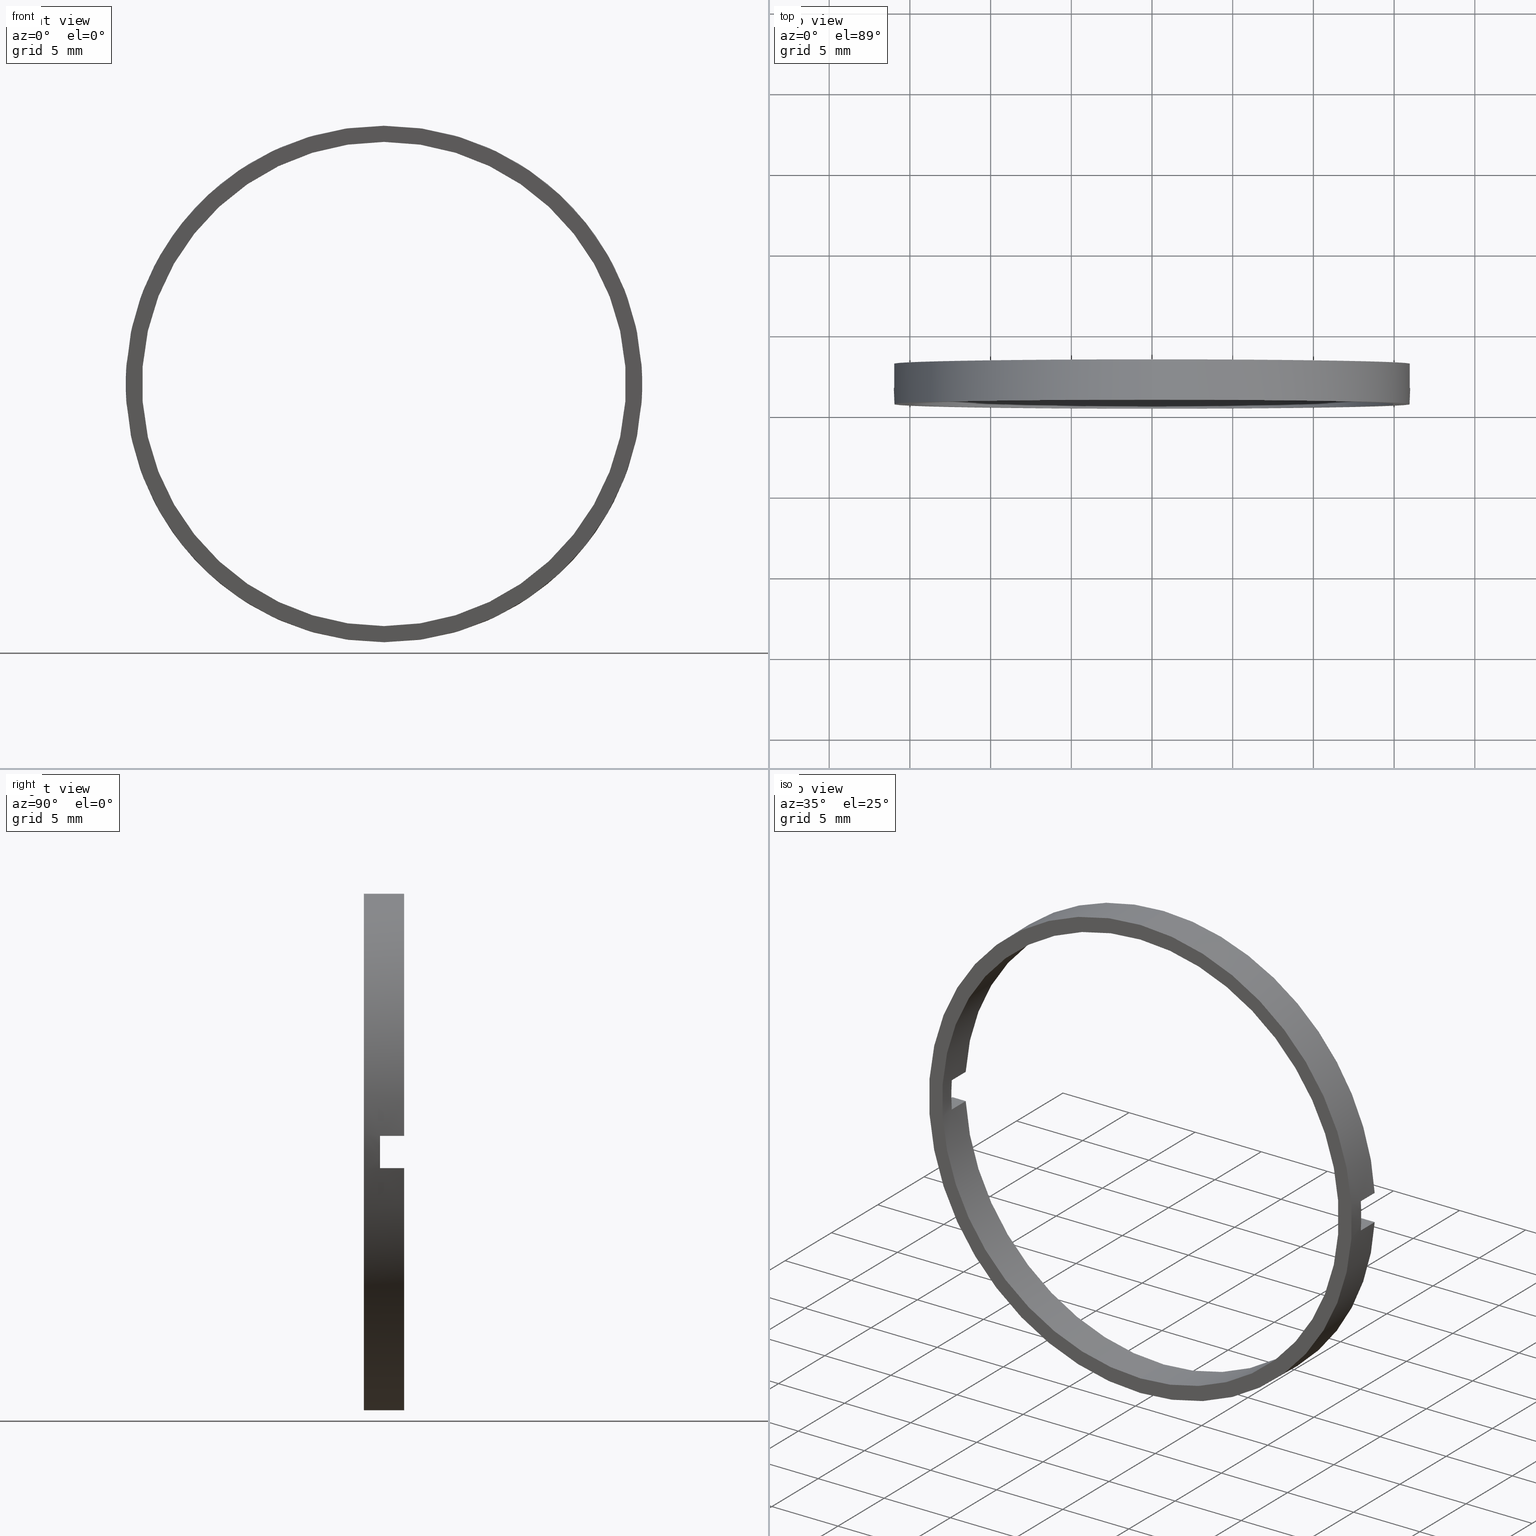
[diagram: canonical four-view strip — front | top / right | iso, engineering-drawing reading convention]
A machine part, canonical four-view strip (front | top / right | iso — engineering-drawing reading convention). The complete STEP part file that produces these views, byte-faithful:
ISO-10303-21;
HEADER;
FILE_DESCRIPTION (( 'STEP AP214' ),
    '1' );
FILE_NAME ('514006.STEP',
    '2019-09-18T05:50:54',
    ( '' ),
    ( '' ),
    'SwSTEP 2.0',
    'SolidWorks 2016',
    '' );
FILE_SCHEMA (( 'AUTOMOTIVE_DESIGN' ));
ENDSEC;

DATA;
#1 = DIRECTION ( 'NONE',  ( 0.0000000000000000000, 0.0000000000000000000, 1.000000000000000000 ) ) ;
#2 = EDGE_LOOP ( 'NONE', ( #444, #239, #418, #322 ) ) ;
#3 = LINE ( 'NONE', #99, #110 ) ;
#4 = AXIS2_PLACEMENT_3D ( 'NONE', #293, #78, #157 ) ;
#5 = ADVANCED_FACE ( 'NONE', ( #427, #124 ), #134, .F. ) ;
#6 = ORIENTED_EDGE ( 'NONE', *, *, #221, .T. ) ;
#7 = APPLICATION_CONTEXT ( 'automotive_design' ) ;
#8 = VERTEX_POINT ( 'NONE', #55 ) ;
#9 = CARTESIAN_POINT ( 'NONE',  ( -14.96662954709577200, 56.26084262701361600, 1.000000000000000000 ) ) ;
#10 = EDGE_CURVE ( 'NONE', #423, #368, #310, .T. ) ;
#11 = EDGE_CURVE ( 'NONE', #283, #363, #14, .T. ) ;
#12 = CARTESIAN_POINT ( 'NONE',  ( 0.0000000000000000000, -3.464249787179428400, 0.0000000000000000000 ) ) ;
#13 = EDGE_LOOP ( 'NONE', ( #503, #295, #160, #290 ) ) ;
#14 = LINE ( 'NONE', #203, #194 ) ;
#15 = EDGE_CURVE ( 'NONE', #410, #131, #97, .T. ) ;
#16 = EDGE_CURVE ( 'NONE', #273, #131, #3, .T. ) ;
#17 = DIRECTION ( 'NONE',  ( 0.0000000000000000000, 0.0000000000000000000, 1.000000000000000000 ) ) ;
#18 = ORIENTED_EDGE ( 'NONE', *, *, #413, .T. ) ;
#19 = DIRECTION ( 'NONE',  ( 0.0000000000000000000, 0.0000000000000000000, 1.000000000000000000 ) ) ;
#20 = PRODUCT_DEFINITION ( 'δ֪', '', #153, #477 ) ;
#21 = CIRCLE ( 'NONE', #331, 15.00000000000000700 ) ;
#22 = CARTESIAN_POINT ( 'NONE',  ( 0.0000000000000000000, -4.464249787179428900, 0.0000000000000000000 ) ) ;
#23 = CARTESIAN_POINT ( 'NONE',  ( 0.0000000000000000000, 56.26084262701361600, 0.0000000000000000000 ) ) ;
#24 = ORIENTED_EDGE ( 'NONE', *, *, #34, .T. ) ;
#25 = VERTEX_POINT ( 'NONE', #403 ) ;
#26 = VECTOR ( 'NONE', #109, 1000.000000000000000 ) ;
#27 = LINE ( 'NONE', #338, #459 ) ;
#28 = DIRECTION ( 'NONE',  ( 1.000000000000000000, 0.0000000000000000000, 0.0000000000000000000 ) ) ;
#29 = AXIS2_PLACEMENT_3D ( 'NONE', #33, #422, #218 ) ;
#30 = DIRECTION ( 'NONE',  ( 0.0000000000000000000, 1.000000000000000000, 0.0000000000000000000 ) ) ;
#31 = ORIENTED_EDGE ( 'NONE', *, *, #241, .F. ) ;
#32 = CYLINDRICAL_SURFACE ( 'NONE', #4, 15.00000000000000700 ) ;
#33 = CARTESIAN_POINT ( 'NONE',  ( 0.0000000000000000000, 56.26084262701361600, 0.0000000000000000000 ) ) ;
#34 = EDGE_CURVE ( 'NONE', #235, #410, #284, .T. ) ;
#35 = ORIENTED_EDGE ( 'NONE', *, *, #107, .F. ) ;
#36 = ORIENTED_EDGE ( 'NONE', *, *, #336, .T. ) ;
#37 = CARTESIAN_POINT ( 'NONE',  ( 0.0000000000000000000, -3.464249787179431100, 0.0000000000000000000 ) ) ;
#38 = AXIS2_PLACEMENT_3D ( 'NONE', #243, #323, #59 ) ;
#39 = CARTESIAN_POINT ( 'NONE',  ( 14.96662954709577200, 56.26084262701361600, -1.000000000000000000 ) ) ;
#40 = DIRECTION ( 'NONE',  ( 0.0000000000000000000, -1.000000000000000000, 0.0000000000000000000 ) ) ;
#41 = EDGE_LOOP ( 'NONE', ( #24, #328, #229, #163, #490, #201 ) ) ;
#42 = ORIENTED_EDGE ( 'NONE', *, *, #375, .T. ) ;
#43 = SURFACE_STYLE_FILL_AREA ( #198 ) ;
#44 =( NAMED_UNIT ( * ) SI_UNIT ( $, .STERADIAN. ) SOLID_ANGLE_UNIT ( ) );
#45 = EDGE_CURVE ( 'NONE', #225, #296, #406, .T. ) ;
#46 = VECTOR ( 'NONE', #214, 1000.000000000000000 ) ;
#47 = DIRECTION ( 'NONE',  ( -0.0000000000000000000, -1.000000000000000000, -0.0000000000000000000 ) ) ;
#48 = ORIENTED_EDGE ( 'NONE', *, *, #162, .T. ) ;
#49 = SURFACE_SIDE_STYLE ('',( #43 ) ) ;
#50 = EDGE_LOOP ( 'NONE', ( #479, #62, #478, #254 ) ) ;
#51 = CARTESIAN_POINT ( 'NONE',  ( 1.836970198721030800E-015, -1.964249787179434000, -15.00000000000000700 ) ) ;
#52 = VECTOR ( 'NONE', #352, 1000.000000000000000 ) ;
#53 = DIRECTION ( 'NONE',  ( -0.0000000000000000000, 1.000000000000000000, -0.0000000000000000000 ) ) ;
#54 = FACE_OUTER_BOUND ( 'NONE', #50, .T. ) ;
#55 = CARTESIAN_POINT ( 'NONE',  ( 15.96871942267130600, -1.964249787179430900, -1.000000000000000000 ) ) ;
#56 = ORIENTED_EDGE ( 'NONE', *, *, #298, .T. ) ;
#57 = ORIENTED_EDGE ( 'NONE', *, *, #162, .F. ) ;
#58 = COLOUR_RGB ( '',1.000000000000000000, 1.000000000000000000, 1.000000000000000000 ) ;
#59 = DIRECTION ( 'NONE',  ( 0.0000000000000000000, 0.0000000000000000000, 1.000000000000000000 ) ) ;
#60 = EDGE_CURVE ( 'NONE', #119, #25, #388, .T. ) ;
#61 = AXIS2_PLACEMENT_3D ( 'NONE', #437, #485, #307 ) ;
#62 = ORIENTED_EDGE ( 'NONE', *, *, #60, .T. ) ;
#63 = CARTESIAN_POINT ( 'NONE',  ( 1.959434878635766300E-015, 56.26084262701361600, -16.00000000000000700 ) ) ;
#64 = COLOUR_RGB ( '',1.000000000000000000, 1.000000000000000000, 1.000000000000000000 ) ;
#65 = LINE ( 'NONE', #454, #468 ) ;
#66 = DIRECTION ( 'NONE',  ( -0.0000000000000000000, 1.000000000000000000, -0.0000000000000000000 ) ) ;
#67 = VECTOR ( 'NONE', #434, 1000.000000000000000 ) ;
#68 =( GEOMETRIC_REPRESENTATION_CONTEXT ( 3 ) GLOBAL_UNCERTAINTY_ASSIGNED_CONTEXT ( ( #205 ) ) GLOBAL_UNIT_ASSIGNED_CONTEXT ( ( #504, #114, #372 ) ) REPRESENTATION_CONTEXT ( 'NONE', 'WORKASPACE' ) );
#69 = CARTESIAN_POINT ( 'NONE',  ( -14.96662954709577100, -3.464249787179428400, -0.9999999999999995600 ) ) ;
#70 = ORIENTED_EDGE ( 'NONE', *, *, #101, .T. ) ;
#71 = CARTESIAN_POINT ( 'NONE',  ( -26.85254027261461800, -3.464249787179431100, -1.000000000000000000 ) ) ;
#72 = COLOUR_RGB ( '',1.000000000000000000, 1.000000000000000000, 1.000000000000000000 ) ;
#73 = CIRCLE ( 'NONE', #464, 15.00000000000000700 ) ;
#74 = DIRECTION ( 'NONE',  ( 1.000000000000000000, 0.0000000000000000000, 0.0000000000000000000 ) ) ;
#75 = MECHANICAL_DESIGN_GEOMETRIC_PRESENTATION_REPRESENTATION (  '', ( #127 ), #223 ) ;
#76 = DIRECTION ( 'NONE',  ( -0.0000000000000000000, -1.000000000000000000, -0.0000000000000000000 ) ) ;
#77 = ORIENTED_EDGE ( 'NONE', *, *, #107, .T. ) ;
#78 = DIRECTION ( 'NONE',  ( -0.0000000000000000000, 1.000000000000000000, -0.0000000000000000000 ) ) ;
#79 = PRESENTATION_STYLE_ASSIGNMENT (( #209 ) ) ;
#80 = CARTESIAN_POINT ( 'NONE',  ( 1.959434878635766300E-015, -1.964249787179434000, -16.00000000000000700 ) ) ;
#81 = DIRECTION ( 'NONE',  ( -0.0000000000000000000, 1.000000000000000000, -0.0000000000000000000 ) ) ;
#82 = ORIENTED_EDGE ( 'NONE', *, *, #125, .T. ) ;
#83 = DIRECTION ( 'NONE',  ( -0.0000000000000000000, 1.000000000000000000, -0.0000000000000000000 ) ) ;
#84 = APPLICATION_CONTEXT ( 'automotive_design' ) ;
#85 = PRODUCT_DEFINITION_SHAPE ( 'NONE', 'NONE',  #20 ) ;
#86 = ADVANCED_FACE ( 'NONE', ( #132 ), #212, .F. ) ;
#87 = DIRECTION ( 'NONE',  ( 0.0000000000000000000, 1.000000000000000000, 0.0000000000000000000 ) ) ;
#88 = ORIENTED_EDGE ( 'NONE', *, *, #451, .T. ) ;
#89 = ORIENTED_EDGE ( 'NONE', *, *, #241, .T. ) ;
#90 = DIRECTION ( 'NONE',  ( 0.0000000000000000000, 0.0000000000000000000, 1.000000000000000000 ) ) ;
#91 = CIRCLE ( 'NONE', #38, 15.00000000000000700 ) ;
#92 = CARTESIAN_POINT ( 'NONE',  ( 0.0000000000000000000, -4.464249787179428900, 16.00000000000000700 ) ) ;
#93 = LINE ( 'NONE', #184, #133 ) ;
#94 = CARTESIAN_POINT ( 'NONE',  ( 0.0000000000000000000, -1.964249787179434000, 0.0000000000000000000 ) ) ;
#95 = CARTESIAN_POINT ( 'NONE',  ( 0.0000000000000000000, -3.464249787179428400, 0.0000000000000000000 ) ) ;
#96 = VECTOR ( 'NONE', #392, 1000.000000000000000 ) ;
#97 = CIRCLE ( 'NONE', #61, 16.00000000000000700 ) ;
#98 =( GEOMETRIC_REPRESENTATION_CONTEXT ( 3 ) GLOBAL_UNCERTAINTY_ASSIGNED_CONTEXT ( ( #480 ) ) GLOBAL_UNIT_ASSIGNED_CONTEXT ( ( #351, #474, #401 ) ) REPRESENTATION_CONTEXT ( 'NONE', 'WORKASPACE' ) );
#99 = CARTESIAN_POINT ( 'NONE',  ( 15.96871942267132000, 56.26084262701361600, 1.000000000000000000 ) ) ;
#100 = VECTOR ( 'NONE', #227, 1000.000000000000000 ) ;
#101 = EDGE_CURVE ( 'NONE', #296, #225, #73, .T. ) ;
#102 = DIRECTION ( 'NONE',  ( 0.0000000000000000000, 0.0000000000000000000, -1.000000000000000000 ) ) ;
#103 = ORIENTED_EDGE ( 'NONE', *, *, #34, .F. ) ;
#104 = ORIENTED_EDGE ( 'NONE', *, *, #277, .F. ) ;
#105 = DIRECTION ( 'NONE',  ( -0.0000000000000000000, 1.000000000000000000, -0.0000000000000000000 ) ) ;
#106 = FILL_AREA_STYLE_COLOUR ( '', #58 ) ;
#107 = EDGE_CURVE ( 'NONE', #357, #349, #121, .T. ) ;
#108 = ORIENTED_EDGE ( 'NONE', *, *, #10, .T. ) ;
#109 = DIRECTION ( 'NONE',  ( 1.000000000000000000, 0.0000000000000000000, 0.0000000000000000000 ) ) ;
#110 = VECTOR ( 'NONE', #233, 1000.000000000000000 ) ;
#111 = PRESENTATION_STYLE_ASSIGNMENT (( #334 ) ) ;
#112 = CIRCLE ( 'NONE', #494, 16.00000000000000700 ) ;
#113 = DIRECTION ( 'NONE',  ( 1.509903313490212900E-014, 0.0000000000000000000, 1.000000000000000000 ) ) ;
#114 =( NAMED_UNIT ( * ) PLANE_ANGLE_UNIT ( ) SI_UNIT ( $, .RADIAN. ) );
#115 = VERTEX_POINT ( 'NONE', #488 ) ;
#116 = CARTESIAN_POINT ( 'NONE',  ( 15.96871942267131700, -3.464249787179428400, 0.9999999999999995600 ) ) ;
#117 = CARTESIAN_POINT ( 'NONE',  ( -14.96662954709577100, -1.964249787179434000, -0.9999999999999995600 ) ) ;
#118 = PRODUCT ( '514006', '514006', '', ( #128 ) ) ;
#119 = VERTEX_POINT ( 'NONE', #495 ) ;
#120 = VERTEX_POINT ( 'NONE', #449 ) ;
#121 = LINE ( 'NONE', #169, #399 ) ;
#122 = AXIS2_PLACEMENT_3D ( 'NONE', #173, #102, #213 ) ;
#123 = DIRECTION ( 'NONE',  ( -0.0000000000000000000, 1.000000000000000000, -0.0000000000000000000 ) ) ;
#124 = FACE_BOUND ( 'NONE', #237, .T. ) ;
#125 = EDGE_CURVE ( 'NONE', #8, #397, #275, .T. ) ;
#126 = FACE_OUTER_BOUND ( 'NONE', #41, .T. ) ;
#127 = STYLED_ITEM ( 'NONE', ( #355 ), #247 ) ;
#128 = PRODUCT_CONTEXT ( 'NONE', #7, 'mechanical' ) ;
#129 = DIRECTION ( 'NONE',  ( 1.000000000000000000, 0.0000000000000000000, 0.0000000000000000000 ) ) ;
#130 = ORIENTED_EDGE ( 'NONE', *, *, #187, .T. ) ;
#131 = VERTEX_POINT ( 'NONE', #409 ) ;
#132 = FACE_OUTER_BOUND ( 'NONE', #456, .T. ) ;
#133 = VECTOR ( 'NONE', #74, 1000.000000000000000 ) ;
#134 = PLANE ( 'NONE',  #491 ) ;
#135 = ORIENTED_EDGE ( 'NONE', *, *, #189, .T. ) ;
#136 = CARTESIAN_POINT ( 'NONE',  ( 0.0000000000000000000, -4.464249787179428900, 0.0000000000000000000 ) ) ;
#137 = CIRCLE ( 'NONE', #304, 16.00000000000000700 ) ;
#138 = DIRECTION ( 'NONE',  ( -1.000000000000000000, -0.0000000000000000000, -0.0000000000000000000 ) ) ;
#139 =( NAMED_UNIT ( * ) PLANE_ANGLE_UNIT ( ) SI_UNIT ( $, .RADIAN. ) );
#140 = EDGE_LOOP ( 'NONE', ( #440, #446, #337, #108, #167, #219, #206, #48 ) ) ;
#141 = ORIENTED_EDGE ( 'NONE', *, *, #415, .F. ) ;
#142 = SURFACE_STYLE_FILL_AREA ( #150 ) ;
#143 = CARTESIAN_POINT ( 'NONE',  ( 0.0000000000000000000, -1.964249787179434000, 0.0000000000000000000 ) ) ;
#144 = COLOUR_RGB ( '',1.000000000000000000, 1.000000000000000000, 1.000000000000000000 ) ;
#145 = AXIS2_PLACEMENT_3D ( 'NONE', #37, #226, #300 ) ;
#146 = DIRECTION ( 'NONE',  ( -1.000000000000000000, 0.0000000000000000000, -0.0000000000000000000 ) ) ;
#147 = ORIENTED_EDGE ( 'NONE', *, *, #15, .F. ) ;
#148 = CARTESIAN_POINT ( 'NONE',  ( -15.96871942267132400, -1.964249787179430900, 1.000000000000000000 ) ) ;
#149 = ORIENTED_EDGE ( 'NONE', *, *, #170, .F. ) ;
#150 = FILL_AREA_STYLE ('',( #248 ) ) ;
#151 = EDGE_CURVE ( 'NONE', #303, #463, #177, .T. ) ;
#152 = SURFACE_SIDE_STYLE ('',( #400 ) ) ;
#153 = PRODUCT_DEFINITION_FORMATION_WITH_SPECIFIED_SOURCE ( '�κ�', '', #118, .NOT_KNOWN. ) ;
#154 = CARTESIAN_POINT ( 'NONE',  ( 0.0000000000000000000, 56.26084262701361600, 0.0000000000000000000 ) ) ;
#155 = ORIENTED_EDGE ( 'NONE', *, *, #151, .T. ) ;
#156 = DIRECTION ( 'NONE',  ( 0.0000000000000000000, -0.0000000000000000000, -1.000000000000000000 ) ) ;
#157 = DIRECTION ( 'NONE',  ( 0.0000000000000000000, 0.0000000000000000000, 1.000000000000000000 ) ) ;
#158 = CARTESIAN_POINT ( 'NONE',  ( 15.00000000000000700, -1.964249787179430900, 0.0000000000000000000 ) ) ;
#159 = MECHANICAL_DESIGN_GEOMETRIC_PRESENTATION_REPRESENTATION (  '', ( #342 ), #68 ) ;
#160 = ORIENTED_EDGE ( 'NONE', *, *, #170, .T. ) ;
#161 = APPLICATION_PROTOCOL_DEFINITION ( 'draft international standard', 'automotive_design', 1998, #84 ) ;
#162 = EDGE_CURVE ( 'NONE', #115, #432, #91, .T. ) ;
#163 = ORIENTED_EDGE ( 'NONE', *, *, #10, .F. ) ;
#164 = VECTOR ( 'NONE', #318, 1000.000000000000000 ) ;
#165 = ADVANCED_FACE ( 'NONE', ( #378 ), #365, .T. ) ;
#166 = LINE ( 'NONE', #268, #96 ) ;
#167 = ORIENTED_EDGE ( 'NONE', *, *, #317, .T. ) ;
#168 = AXIS2_PLACEMENT_3D ( 'NONE', #287, #76, #113 ) ;
#169 = CARTESIAN_POINT ( 'NONE',  ( -26.85254027261461800, -3.464249787179431100, -1.000000000000000000 ) ) ;
#170 = EDGE_CURVE ( 'NONE', #374, #253, #452, .T. ) ;
#171 = CARTESIAN_POINT ( 'NONE',  ( -26.85254027261461800, -1.964249787179430900, 1.000000000000000000 ) ) ;
#172 = SHAPE_DEFINITION_REPRESENTATION ( #85, #280 ) ;
#173 = CARTESIAN_POINT ( 'NONE',  ( -26.85254027261461800, -3.464249787179431100, -1.000000000000000000 ) ) ;
#174 = ORIENTED_EDGE ( 'NONE', *, *, #187, .F. ) ;
#175 = PRODUCT_RELATED_PRODUCT_CATEGORY ( 'part', '', ( #118 ) ) ;
#176 = DIRECTION ( 'NONE',  ( -0.0000000000000000000, 1.000000000000000000, -0.0000000000000000000 ) ) ;
#177 = CIRCLE ( 'NONE', #370, 16.00000000000000700 ) ;
#178 = VECTOR ( 'NONE', #40, 1000.000000000000000 ) ;
#179 = CARTESIAN_POINT ( 'NONE',  ( 0.0000000000000000000, -3.464249787179428400, 0.0000000000000000000 ) ) ;
#180 = EDGE_LOOP ( 'NONE', ( #174, #155, #88, #103, #207, #274, #36, #341 ) ) ;
#181 = FILL_AREA_STYLE_COLOUR ( '', #144 ) ;
#182 = AXIS2_PLACEMENT_3D ( 'NONE', #143, #453, #420 ) ;
#183 = PLANE ( 'NONE',  #360 ) ;
#184 = CARTESIAN_POINT ( 'NONE',  ( -26.85254027261461800, -3.464249787179431100, 1.000000000000000000 ) ) ;
#185 = EDGE_LOOP ( 'NONE', ( #186, #450, #42, #18, #329, #271, #455, #315 ) ) ;
#186 = ORIENTED_EDGE ( 'NONE', *, *, #45, .F. ) ;
#187 = EDGE_CURVE ( 'NONE', #303, #397, #421, .T. ) ;
#188 = EDGE_CURVE ( 'NONE', #368, #131, #246, .T. ) ;
#189 = EDGE_CURVE ( 'NONE', #349, #120, #390, .T. ) ;
#190 = DIRECTION ( 'NONE',  ( 0.0000000000000000000, -1.000000000000000000, 0.0000000000000000000 ) ) ;
#191 = CARTESIAN_POINT ( 'NONE',  ( -15.96871942267132000, 56.26084262701361600, -1.000000000000000000 ) ) ;
#192 = LINE ( 'NONE', #476, #67 ) ;
#193 = ORIENTED_EDGE ( 'NONE', *, *, #298, .F. ) ;
#194 = VECTOR ( 'NONE', #407, 1000.000000000000000 ) ;
#195 = PLANE ( 'NONE',  #438 ) ;
#196 = AXIS2_PLACEMENT_3D ( 'NONE', #305, #398, #129 ) ;
#197 = LINE ( 'NONE', #39, #366 ) ;
#198 = FILL_AREA_STYLE ('',( #302 ) ) ;
#199 = ADVANCED_FACE ( 'NONE', ( #339 ), #367, .F. ) ;
#200 = EDGE_CURVE ( 'NONE', #235, #119, #353, .T. ) ;
#201 = ORIENTED_EDGE ( 'NONE', *, *, #234, .F. ) ;
#202 =( NAMED_UNIT ( * ) PLANE_ANGLE_UNIT ( ) SI_UNIT ( $, .RADIAN. ) );
#203 = CARTESIAN_POINT ( 'NONE',  ( -26.85254027261461800, -3.464249787179431100, -1.000000000000000000 ) ) ;
#204 = ADVANCED_FACE ( 'NONE', ( #324 ), #312, .T. ) ;
#205 = UNCERTAINTY_MEASURE_WITH_UNIT (LENGTH_MEASURE( 1.000000000000000100E-005 ), #504, 'distance_accuracy_value', 'NONE');
#206 = ORIENTED_EDGE ( 'NONE', *, *, #415, .T. ) ;
#207 = ORIENTED_EDGE ( 'NONE', *, *, #200, .T. ) ;
#208 = FACE_OUTER_BOUND ( 'NONE', #140, .T. ) ;
#209 = SURFACE_STYLE_USAGE ( .BOTH. , #364 ) ;
#210 = AXIS2_PLACEMENT_3D ( 'NONE', #23, #242, #359 ) ;
#211 = ORIENTED_EDGE ( 'NONE', *, *, #45, .T. ) ;
#212 = PLANE ( 'NONE',  #122 ) ;
#213 = DIRECTION ( 'NONE',  ( -1.000000000000000000, 0.0000000000000000000, -0.0000000000000000000 ) ) ;
#214 = DIRECTION ( 'NONE',  ( -0.0000000000000000000, 1.000000000000000000, -0.0000000000000000000 ) ) ;
#215 = LINE ( 'NONE', #191, #333 ) ;
#216 = AXIS2_PLACEMENT_3D ( 'NONE', #321, #330, #28 ) ;
#217 = DIRECTION ( 'NONE',  ( -1.000000000000000000, -0.0000000000000000000, -0.0000000000000000000 ) ) ;
#218 = DIRECTION ( 'NONE',  ( 0.0000000000000000000, 0.0000000000000000000, 1.000000000000000000 ) ) ;
#219 = ORIENTED_EDGE ( 'NONE', *, *, #189, .F. ) ;
#220 = CARTESIAN_POINT ( 'NONE',  ( 0.0000000000000000000, 56.26084262701361600, 15.00000000000000700 ) ) ;
#221 = EDGE_CURVE ( 'NONE', #120, #273, #93, .T. ) ;
#222 = CARTESIAN_POINT ( 'NONE',  ( -26.85254027261461800, -1.964249787179430900, 1.000000000000000000 ) ) ;
#223 =( GEOMETRIC_REPRESENTATION_CONTEXT ( 3 ) GLOBAL_UNCERTAINTY_ASSIGNED_CONTEXT ( ( #496 ) ) GLOBAL_UNIT_ASSIGNED_CONTEXT ( ( #327, #501, #499 ) ) REPRESENTATION_CONTEXT ( 'NONE', 'WORKASPACE' ) );
#224 = CARTESIAN_POINT ( 'NONE',  ( -15.96871942267131700, -3.464249787179428400, -0.9999999999999995600 ) ) ;
#225 = VERTEX_POINT ( 'NONE', #252 ) ;
#226 = DIRECTION ( 'NONE',  ( 0.0000000000000000000, 1.000000000000000000, 0.0000000000000000000 ) ) ;
#227 = DIRECTION ( 'NONE',  ( 0.0000000000000000000, -1.000000000000000000, 0.0000000000000000000 ) ) ;
#228 = CARTESIAN_POINT ( 'NONE',  ( -14.96662954709577200, 56.26084262701361600, -1.000000000000000000 ) ) ;
#229 = ORIENTED_EDGE ( 'NONE', *, *, #188, .F. ) ;
#230 = ORIENTED_EDGE ( 'NONE', *, *, #436, .F. ) ;
#231 = PRESENTATION_STYLE_ASSIGNMENT (( #306 ) ) ;
#232 = ADVANCED_FACE ( 'NONE', ( #54 ), #288, .T. ) ;
#233 = DIRECTION ( 'NONE',  ( -0.0000000000000000000, 1.000000000000000000, -0.0000000000000000000 ) ) ;
#234 = EDGE_CURVE ( 'NONE', #235, #412, #482, .T. ) ;
#235 = VERTEX_POINT ( 'NONE', #148 ) ;
#236 = VECTOR ( 'NONE', #250, 1000.000000000000000 ) ;
#237 = EDGE_LOOP ( 'NONE', ( #70, #211 ) ) ;
#238 = DIRECTION ( 'NONE',  ( 0.0000000000000000000, 0.0000000000000000000, 1.000000000000000000 ) ) ;
#239 = ORIENTED_EDGE ( 'NONE', *, *, #317, .F. ) ;
#240 = DIRECTION ( 'NONE',  ( 0.0000000000000000000, 0.0000000000000000000, 1.000000000000000000 ) ) ;
#241 = EDGE_CURVE ( 'NONE', #8, #115, #65, .T. ) ;
#242 = DIRECTION ( 'NONE',  ( -0.0000000000000000000, 1.000000000000000000, -0.0000000000000000000 ) ) ;
#243 = CARTESIAN_POINT ( 'NONE',  ( 0.0000000000000000000, -1.964249787179434000, 0.0000000000000000000 ) ) ;
#244 = ORIENTED_EDGE ( 'NONE', *, *, #16, .T. ) ;
#245 = FILL_AREA_STYLE ('',( #106 ) ) ;
#246 = LINE ( 'NONE', #171, #26 ) ;
#247 = MANIFOLD_SOLID_BREP ( '�г�-����1', #502 ) ;
#248 = FILL_AREA_STYLE_COLOUR ( '', #64 ) ;
#249 = DIRECTION ( 'NONE',  ( 0.0000000000000000000, -0.0000000000000000000, 1.000000000000000000 ) ) ;
#250 = DIRECTION ( 'NONE',  ( 1.000000000000000000, 0.0000000000000000000, 0.0000000000000000000 ) ) ;
#251 = AXIS2_PLACEMENT_3D ( 'NONE', #179, #369, #1 ) ;
#252 = CARTESIAN_POINT ( 'NONE',  ( 1.836970198721030800E-015, -4.464249787179428900, -15.00000000000000700 ) ) ;
#253 = VERTEX_POINT ( 'NONE', #286 ) ;
#254 = ORIENTED_EDGE ( 'NONE', *, *, #11, .T. ) ;
#255 = SURFACE_STYLE_FILL_AREA ( #245 ) ;
#256 = DIRECTION ( 'NONE',  ( 0.0000000000000000000, -1.000000000000000000, 0.0000000000000000000 ) ) ;
#257 = DIRECTION ( 'NONE',  ( -0.0000000000000000000, 1.000000000000000000, -0.0000000000000000000 ) ) ;
#258 = LINE ( 'NONE', #9, #384 ) ;
#259 = CARTESIAN_POINT ( 'NONE',  ( 15.00000000000000700, -1.964249787179430900, 0.0000000000000000000 ) ) ;
#260 = EDGE_LOOP ( 'NONE', ( #462, #267 ) ) ;
#261 = CARTESIAN_POINT ( 'NONE',  ( -26.85254027261461800, -3.464249787179431100, 1.000000000000000000 ) ) ;
#262 = APPLICATION_PROTOCOL_DEFINITION ( 'draft international standard', 'automotive_design', 1998, #7 ) ;
#263 = ADVANCED_FACE ( 'NONE', ( #340 ), #183, .F. ) ;
#264 =( LENGTH_UNIT ( ) NAMED_UNIT ( * ) SI_UNIT ( .MILLI., .METRE. ) );
#265 = EDGE_CURVE ( 'NONE', #412, #423, #325, .T. ) ;
#266 = DIRECTION ( 'NONE',  ( 0.0000000000000000000, 0.0000000000000000000, 1.000000000000000000 ) ) ;
#267 = ORIENTED_EDGE ( 'NONE', *, *, #151, .F. ) ;
#268 = CARTESIAN_POINT ( 'NONE',  ( 1.836970198721030800E-015, 56.26084262701361600, -15.00000000000000700 ) ) ;
#269 = FACE_OUTER_BOUND ( 'NONE', #308, .T. ) ;
#270 = DIRECTION ( 'NONE',  ( 0.0000000000000000000, 0.0000000000000000000, 1.000000000000000000 ) ) ;
#271 = ORIENTED_EDGE ( 'NONE', *, *, #436, .T. ) ;
#272 = AXIS2_PLACEMENT_3D ( 'NONE', #154, #83, #297 ) ;
#273 = VERTEX_POINT ( 'NONE', #116 ) ;
#274 = ORIENTED_EDGE ( 'NONE', *, *, #426, .F. ) ;
#275 = CIRCLE ( 'NONE', #431, 16.00000000000000700 ) ;
#276 = CIRCLE ( 'NONE', #251, 16.00000000000000700 ) ;
#277 = EDGE_CURVE ( 'NONE', #273, #357, #276, .T. ) ;
#278 = EDGE_CURVE ( 'NONE', #296, #423, #381, .T. ) ;
#279 =( LENGTH_UNIT ( ) NAMED_UNIT ( * ) SI_UNIT ( .MILLI., .METRE. ) );
#280 = ADVANCED_BREP_SHAPE_REPRESENTATION ( '514006', ( #247, #196 ), #475 ) ;
#281 = DIRECTION ( 'NONE',  ( -0.0000000000000000000, 1.000000000000000000, -0.0000000000000000000 ) ) ;
#282 = AXIS2_PLACEMENT_3D ( 'NONE', #483, #53, #361 ) ;
#283 = VERTEX_POINT ( 'NONE', #69 ) ;
#284 = CIRCLE ( 'NONE', #282, 16.00000000000000700 ) ;
#285 = LINE ( 'NONE', #228, #100 ) ;
#286 = CARTESIAN_POINT ( 'NONE',  ( -15.96871942267132400, -1.964249787179430900, -1.000000000000000000 ) ) ;
#287 = CARTESIAN_POINT ( 'NONE',  ( 0.0000000000000000000, -3.464249787179428400, 0.0000000000000000000 ) ) ;
#288 = PLANE ( 'NONE',  #379 ) ;
#289 = ORIENTED_EDGE ( 'NONE', *, *, #125, .F. ) ;
#290 = ORIENTED_EDGE ( 'NONE', *, *, #336, .F. ) ;
#291 = DIRECTION ( 'NONE',  ( 0.0000000000000000000, -1.000000000000000000, 0.0000000000000000000 ) ) ;
#292 = MECHANICAL_DESIGN_GEOMETRIC_PRESENTATION_REPRESENTATION (  '', ( #443 ), #98 ) ;
#293 = CARTESIAN_POINT ( 'NONE',  ( 0.0000000000000000000, 56.26084262701361600, 0.0000000000000000000 ) ) ;
#294 = DIRECTION ( 'NONE',  ( 1.000000000000000000, 0.0000000000000000000, 0.0000000000000000000 ) ) ;
#295 = ORIENTED_EDGE ( 'NONE', *, *, #413, .F. ) ;
#296 = VERTEX_POINT ( 'NONE', #326 ) ;
#297 = DIRECTION ( 'NONE',  ( 0.0000000000000000000, 0.0000000000000000000, 1.000000000000000000 ) ) ;
#298 = EDGE_CURVE ( 'NONE', #8, #357, #27, .T. ) ;
#299 = DIRECTION ( 'NONE',  ( -0.0000000000000000000, 1.000000000000000000, -0.0000000000000000000 ) ) ;
#300 = DIRECTION ( 'NONE',  ( 0.0000000000000000000, -0.0000000000000000000, 1.000000000000000000 ) ) ;
#301 = ADVANCED_FACE ( 'NONE', ( #269 ), #465, .T. ) ;
#302 = FILL_AREA_STYLE_COLOUR ( '', #72 ) ;
#303 = VERTEX_POINT ( 'NONE', #469 ) ;
#304 = AXIS2_PLACEMENT_3D ( 'NONE', #377, #81, #389 ) ;
#305 = CARTESIAN_POINT ( 'NONE',  ( 0.0000000000000000000, 0.0000000000000000000, 0.0000000000000000000 ) ) ;
#306 = SURFACE_STYLE_USAGE ( .BOTH. , #49 ) ;
#307 = DIRECTION ( 'NONE',  ( 0.0000000000000000000, 0.0000000000000000000, 1.000000000000000000 ) ) ;
#308 = EDGE_LOOP ( 'NONE', ( #320, #77, #135, #6 ) ) ;
#309 = DIRECTION ( 'NONE',  ( -0.0000000000000000000, 1.000000000000000000, -0.0000000000000000000 ) ) ;
#310 = CIRCLE ( 'NONE', #460, 15.00000000000000700 ) ;
#311 = ADVANCED_FACE ( 'NONE', ( #208 ), #447, .F. ) ;
#312 = CYLINDRICAL_SURFACE ( 'NONE', #29, 16.00000000000000700 ) ;
#313 = CARTESIAN_POINT ( 'NONE',  ( -26.85254027261461800, -3.464249787179431100, 1.000000000000000000 ) ) ;
#314 =( GEOMETRIC_REPRESENTATION_CONTEXT ( 3 ) GLOBAL_UNCERTAINTY_ASSIGNED_CONTEXT ( ( #441 ) ) GLOBAL_UNIT_ASSIGNED_CONTEXT ( ( #279, #139, #493 ) ) REPRESENTATION_CONTEXT ( 'NONE', 'WORKASPACE' ) );
#315 = ORIENTED_EDGE ( 'NONE', *, *, #278, .F. ) ;
#316 = CARTESIAN_POINT ( 'NONE',  ( -26.85254027261461800, -1.964249787179430900, -1.000000000000000000 ) ) ;
#317 = EDGE_CURVE ( 'NONE', #368, #120, #467, .T. ) ;
#318 = DIRECTION ( 'NONE',  ( -1.000000000000000000, -0.0000000000000000000, -0.0000000000000000000 ) ) ;
#319 = AXIS2_PLACEMENT_3D ( 'NONE', #259, #256, #425 ) ;
#320 = ORIENTED_EDGE ( 'NONE', *, *, #277, .T. ) ;
#321 = CARTESIAN_POINT ( 'NONE',  ( -26.85254027261461800, -3.464249787179431100, 1.000000000000000000 ) ) ;
#322 = ORIENTED_EDGE ( 'NONE', *, *, #16, .F. ) ;
#323 = DIRECTION ( 'NONE',  ( -0.0000000000000000000, 1.000000000000000000, -0.0000000000000000000 ) ) ;
#324 = FACE_OUTER_BOUND ( 'NONE', #362, .T. ) ;
#325 = CIRCLE ( 'NONE', #182, 15.00000000000000700 ) ;
#326 = CARTESIAN_POINT ( 'NONE',  ( 0.0000000000000000000, -4.464249787179428900, 15.00000000000000700 ) ) ;
#327 =( LENGTH_UNIT ( ) NAMED_UNIT ( * ) SI_UNIT ( .MILLI., .METRE. ) );
#328 = ORIENTED_EDGE ( 'NONE', *, *, #15, .T. ) ;
#329 = ORIENTED_EDGE ( 'NONE', *, *, #472, .F. ) ;
#330 = DIRECTION ( 'NONE',  ( -0.0000000000000000000, 0.0000000000000000000, 1.000000000000000000 ) ) ;
#331 = AXIS2_PLACEMENT_3D ( 'NONE', #471, #473, #380 ) ;
#332 = DIRECTION ( 'NONE',  ( 0.0000000000000000000, 0.0000000000000000000, -1.000000000000000000 ) ) ;
#333 = VECTOR ( 'NONE', #257, 1000.000000000000000 ) ;
#334 = SURFACE_STYLE_USAGE ( .BOTH. , #373 ) ;
#335 = CARTESIAN_POINT ( 'NONE',  ( 14.96662954709577100, -1.964249787179434000, 0.9999999999999995600 ) ) ;
#336 = EDGE_CURVE ( 'NONE', #363, #253, #215, .T. ) ;
#337 = ORIENTED_EDGE ( 'NONE', *, *, #278, .T. ) ;
#338 = CARTESIAN_POINT ( 'NONE',  ( 15.96871942267132000, 56.26084262701361600, -1.000000000000000000 ) ) ;
#339 = FACE_OUTER_BOUND ( 'NONE', #2, .T. ) ;
#340 = FACE_OUTER_BOUND ( 'NONE', #13, .T. ) ;
#341 = ORIENTED_EDGE ( 'NONE', *, *, #414, .F. ) ;
#342 = STYLED_ITEM ( 'NONE', ( #111 ), #204 ) ;
#343 = DIRECTION ( 'NONE',  ( -0.0000000000000000000, 0.0000000000000000000, 1.000000000000000000 ) ) ;
#344 = ORIENTED_EDGE ( 'NONE', *, *, #451, .F. ) ;
#345 = ADVANCED_FACE ( 'NONE', ( #346 ), #506, .F. ) ;
#346 = FACE_OUTER_BOUND ( 'NONE', #376, .T. ) ;
#347 = CARTESIAN_POINT ( 'NONE',  ( 0.0000000000000000000, -1.964249787179434000, 0.0000000000000000000 ) ) ;
#348 = EDGE_CURVE ( 'NONE', #463, #303, #137, .T. ) ;
#349 = VERTEX_POINT ( 'NONE', #505 ) ;
#350 = PRESENTATION_LAYER_ASSIGNMENT (  '', '', ( #127 ) ) ;
#351 =( LENGTH_UNIT ( ) NAMED_UNIT ( * ) SI_UNIT ( .MILLI., .METRE. ) );
#352 = DIRECTION ( 'NONE',  ( 1.000000000000000000, 0.0000000000000000000, 0.0000000000000000000 ) ) ;
#353 = LINE ( 'NONE', #371, #442 ) ;
#354 = ADVANCED_FACE ( 'NONE', ( #433 ), #32, .F. ) ;
#355 = PRESENTATION_STYLE_ASSIGNMENT (( #457 ) ) ;
#356 = CIRCLE ( 'NONE', #394, 15.00000000000000700 ) ;
#357 = VERTEX_POINT ( 'NONE', #386 ) ;
#358 = DIRECTION ( 'NONE',  ( 0.0000000000000000000, 0.0000000000000000000, 1.000000000000000000 ) ) ;
#359 = DIRECTION ( 'NONE',  ( 0.0000000000000000000, 0.0000000000000000000, 1.000000000000000000 ) ) ;
#360 = AXIS2_PLACEMENT_3D ( 'NONE', #71, #332, #146 ) ;
#361 = DIRECTION ( 'NONE',  ( 0.0000000000000000000, 0.0000000000000000000, 1.000000000000000000 ) ) ;
#362 = EDGE_LOOP ( 'NONE', ( #417, #130, #289, #56, #104, #244, #147, #344 ) ) ;
#363 = VERTEX_POINT ( 'NONE', #224 ) ;
#364 = SURFACE_SIDE_STYLE ('',( #255 ) ) ;
#365 = CYLINDRICAL_SURFACE ( 'NONE', #210, 16.00000000000000700 ) ;
#366 = VECTOR ( 'NONE', #299, 1000.000000000000000 ) ;
#367 = PLANE ( 'NONE',  #216 ) ;
#368 = VERTEX_POINT ( 'NONE', #335 ) ;
#369 = DIRECTION ( 'NONE',  ( 0.0000000000000000000, 1.000000000000000000, 0.0000000000000000000 ) ) ;
#370 = AXIS2_PLACEMENT_3D ( 'NONE', #22, #448, #17 ) ;
#371 = CARTESIAN_POINT ( 'NONE',  ( -15.96871942267132000, 56.26084262701361600, 1.000000000000000000 ) ) ;
#372 =( NAMED_UNIT ( * ) SI_UNIT ( $, .STERADIAN. ) SOLID_ANGLE_UNIT ( ) );
#373 = SURFACE_SIDE_STYLE ('',( #142 ) ) ;
#374 = VERTEX_POINT ( 'NONE', #117 ) ;
#375 = EDGE_CURVE ( 'NONE', #432, #374, #21, .T. ) ;
#376 = EDGE_LOOP ( 'NONE', ( #82, #489, #149, #439, #57, #31 ) ) ;
#377 = CARTESIAN_POINT ( 'NONE',  ( 0.0000000000000000000, -4.464249787179428900, 0.0000000000000000000 ) ) ;
#378 = FACE_OUTER_BOUND ( 'NONE', #180, .T. ) ;
#379 = AXIS2_PLACEMENT_3D ( 'NONE', #458, #30, #249 ) ;
#380 = DIRECTION ( 'NONE',  ( 0.0000000000000000000, 0.0000000000000000000, 1.000000000000000000 ) ) ;
#381 = LINE ( 'NONE', #220, #46 ) ;
#382 = UNCERTAINTY_MEASURE_WITH_UNIT (LENGTH_MEASURE( 1.000000000000000100E-005 ), #264, 'distance_accuracy_value', 'NONE');
#383 = DIRECTION ( 'NONE',  ( 0.0000000000000000000, -1.000000000000000000, 0.0000000000000000000 ) ) ;
#384 = VECTOR ( 'NONE', #123, 1000.000000000000000 ) ;
#385 = MECHANICAL_DESIGN_GEOMETRIC_PRESENTATION_REPRESENTATION (  '', ( #408 ), #314 ) ;
#386 = CARTESIAN_POINT ( 'NONE',  ( 15.96871942267131700, -3.464249787179428400, -0.9999999999999995600 ) ) ;
#387 = EDGE_LOOP ( 'NONE', ( #497, #230, #395, #404 ) ) ;
#388 = LINE ( 'NONE', #313, #52 ) ;
#389 = DIRECTION ( 'NONE',  ( 0.0000000000000000000, 0.0000000000000000000, 1.000000000000000000 ) ) ;
#390 = CIRCLE ( 'NONE', #168, 15.00000000000000700 ) ;
#391 = CIRCLE ( 'NONE', #498, 16.00000000000000700 ) ;
#392 = DIRECTION ( 'NONE',  ( -0.0000000000000000000, 1.000000000000000000, -0.0000000000000000000 ) ) ;
#393 = ADVANCED_FACE ( 'NONE', ( #481 ), #195, .F. ) ;
#394 = AXIS2_PLACEMENT_3D ( 'NONE', #12, #47, #90 ) ;
#395 = ORIENTED_EDGE ( 'NONE', *, *, #60, .F. ) ;
#396 = CARTESIAN_POINT ( 'NONE',  ( 0.0000000000000000000, -1.964249787179434000, 15.00000000000000700 ) ) ;
#397 = VERTEX_POINT ( 'NONE', #80 ) ;
#398 = DIRECTION ( 'NONE',  ( 0.0000000000000000000, 0.0000000000000000000, 1.000000000000000000 ) ) ;
#399 = VECTOR ( 'NONE', #138, 1000.000000000000000 ) ;
#400 = SURFACE_STYLE_FILL_AREA ( #500 ) ;
#401 =( NAMED_UNIT ( * ) SI_UNIT ( $, .STERADIAN. ) SOLID_ANGLE_UNIT ( ) );
#402 = ADVANCED_FACE ( 'NONE', ( #126 ), #429, .F. ) ;
#403 = CARTESIAN_POINT ( 'NONE',  ( -14.96662954709577100, -3.464249787179428400, 0.9999999999999995600 ) ) ;
#404 = ORIENTED_EDGE ( 'NONE', *, *, #200, .F. ) ;
#405 = CARTESIAN_POINT ( 'NONE',  ( 15.00000000000000700, -4.464249787179429800, 0.0000000000000000000 ) ) ;
#406 = CIRCLE ( 'NONE', #484, 15.00000000000000700 ) ;
#407 = DIRECTION ( 'NONE',  ( -1.000000000000000000, -0.0000000000000000000, -0.0000000000000000000 ) ) ;
#408 = STYLED_ITEM ( 'NONE', ( #79 ), #165 ) ;
#409 = CARTESIAN_POINT ( 'NONE',  ( 15.96871942267130600, -1.964249787179430900, 1.000000000000000000 ) ) ;
#410 = VERTEX_POINT ( 'NONE', #428 ) ;
#411 = CARTESIAN_POINT ( 'NONE',  ( 0.0000000000000000000, -4.464249787179428900, 0.0000000000000000000 ) ) ;
#412 = VERTEX_POINT ( 'NONE', #430 ) ;
#413 = EDGE_CURVE ( 'NONE', #374, #283, #285, .T. ) ;
#414 = EDGE_CURVE ( 'NONE', #397, #253, #112, .T. ) ;
#415 = EDGE_CURVE ( 'NONE', #349, #115, #197, .T. ) ;
#416 = CARTESIAN_POINT ( 'NONE',  ( 0.0000000000000000000, -1.964249787179434000, 0.0000000000000000000 ) ) ;
#417 = ORIENTED_EDGE ( 'NONE', *, *, #348, .T. ) ;
#418 = ORIENTED_EDGE ( 'NONE', *, *, #188, .T. ) ;
#419 = AXIS2_PLACEMENT_3D ( 'NONE', #158, #190, #156 ) ;
#420 = DIRECTION ( 'NONE',  ( 0.0000000000000000000, 0.0000000000000000000, 1.000000000000000000 ) ) ;
#421 = LINE ( 'NONE', #63, #466 ) ;
#422 = DIRECTION ( 'NONE',  ( -0.0000000000000000000, 1.000000000000000000, -0.0000000000000000000 ) ) ;
#423 = VERTEX_POINT ( 'NONE', #396 ) ;
#424 = PRESENTATION_LAYER_ASSIGNMENT (  '', '', ( #342 ) ) ;
#425 = DIRECTION ( 'NONE',  ( 0.0000000000000000000, -0.0000000000000000000, -1.000000000000000000 ) ) ;
#426 = EDGE_CURVE ( 'NONE', #363, #119, #391, .T. ) ;
#427 = FACE_OUTER_BOUND ( 'NONE', #260, .T. ) ;
#428 = CARTESIAN_POINT ( 'NONE',  ( 0.0000000000000000000, -1.964249787179434000, 16.00000000000000700 ) ) ;
#429 = PLANE ( 'NONE',  #419 ) ;
#430 = CARTESIAN_POINT ( 'NONE',  ( -14.96662954709577100, -1.964249787179434000, 0.9999999999999995600 ) ) ;
#431 = AXIS2_PLACEMENT_3D ( 'NONE', #416, #105, #19 ) ;
#432 = VERTEX_POINT ( 'NONE', #51 ) ;
#433 = FACE_OUTER_BOUND ( 'NONE', #185, .T. ) ;
#434 = DIRECTION ( 'NONE',  ( -0.0000000000000000000, 1.000000000000000000, -0.0000000000000000000 ) ) ;
#435 = EDGE_CURVE ( 'NONE', #225, #432, #166, .T. ) ;
#436 = EDGE_CURVE ( 'NONE', #25, #412, #258, .T. ) ;
#437 = CARTESIAN_POINT ( 'NONE',  ( 0.0000000000000000000, -1.964249787179434000, 0.0000000000000000000 ) ) ;
#438 = AXIS2_PLACEMENT_3D ( 'NONE', #261, #343, #294 ) ;
#439 = ORIENTED_EDGE ( 'NONE', *, *, #375, .F. ) ;
#440 = ORIENTED_EDGE ( 'NONE', *, *, #435, .F. ) ;
#441 = UNCERTAINTY_MEASURE_WITH_UNIT (LENGTH_MEASURE( 1.000000000000000100E-005 ), #279, 'distance_accuracy_value', 'NONE');
#442 = VECTOR ( 'NONE', #291, 1000.000000000000000 ) ;
#443 = STYLED_ITEM ( 'NONE', ( #231 ), #280 ) ;
#444 = ORIENTED_EDGE ( 'NONE', *, *, #221, .F. ) ;
#445 = DIRECTION ( 'NONE',  ( -0.0000000000000000000, 1.000000000000000000, 0.0000000000000000000 ) ) ;
#446 = ORIENTED_EDGE ( 'NONE', *, *, #101, .F. ) ;
#447 = CYLINDRICAL_SURFACE ( 'NONE', #272, 15.00000000000000700 ) ;
#448 = DIRECTION ( 'NONE',  ( -0.0000000000000000000, 1.000000000000000000, -0.0000000000000000000 ) ) ;
#449 = CARTESIAN_POINT ( 'NONE',  ( 14.96662954709577100, -3.464249787179428400, 0.9999999999999995600 ) ) ;
#450 = ORIENTED_EDGE ( 'NONE', *, *, #435, .T. ) ;
#451 = EDGE_CURVE ( 'NONE', #463, #410, #192, .T. ) ;
#452 = LINE ( 'NONE', #316, #164 ) ;
#453 = DIRECTION ( 'NONE',  ( -0.0000000000000000000, 1.000000000000000000, -0.0000000000000000000 ) ) ;
#454 = CARTESIAN_POINT ( 'NONE',  ( -26.85254027261461800, -1.964249787179430900, -1.000000000000000000 ) ) ;
#455 = ORIENTED_EDGE ( 'NONE', *, *, #265, .T. ) ;
#456 = EDGE_LOOP ( 'NONE', ( #89, #141, #35, #193 ) ) ;
#457 = SURFACE_STYLE_USAGE ( .BOTH. , #152 ) ;
#458 = CARTESIAN_POINT ( 'NONE',  ( 0.0000000000000000000, -3.464249787179431100, 0.0000000000000000000 ) ) ;
#459 = VECTOR ( 'NONE', #383, 1000.000000000000000 ) ;
#460 = AXIS2_PLACEMENT_3D ( 'NONE', #94, #486, #238 ) ;
#461 = CARTESIAN_POINT ( 'NONE',  ( 14.96662954709577200, 56.26084262701361600, 1.000000000000000000 ) ) ;
#462 = ORIENTED_EDGE ( 'NONE', *, *, #348, .F. ) ;
#463 = VERTEX_POINT ( 'NONE', #92 ) ;
#464 = AXIS2_PLACEMENT_3D ( 'NONE', #136, #176, #240 ) ;
#465 = PLANE ( 'NONE',  #145 ) ;
#466 = VECTOR ( 'NONE', #66, 1000.000000000000000 ) ;
#467 = LINE ( 'NONE', #461, #178 ) ;
#468 = VECTOR ( 'NONE', #217, 1000.000000000000000 ) ;
#469 = CARTESIAN_POINT ( 'NONE',  ( 1.959434878635766300E-015, -4.464249787179428900, -16.00000000000000700 ) ) ;
#470 = PRESENTATION_LAYER_ASSIGNMENT (  '', '', ( #443 ) ) ;
#471 = CARTESIAN_POINT ( 'NONE',  ( 0.0000000000000000000, -1.964249787179434000, 0.0000000000000000000 ) ) ;
#472 = EDGE_CURVE ( 'NONE', #25, #283, #356, .T. ) ;
#473 = DIRECTION ( 'NONE',  ( -0.0000000000000000000, 1.000000000000000000, -0.0000000000000000000 ) ) ;
#474 =( NAMED_UNIT ( * ) PLANE_ANGLE_UNIT ( ) SI_UNIT ( $, .RADIAN. ) );
#475 =( GEOMETRIC_REPRESENTATION_CONTEXT ( 3 ) GLOBAL_UNCERTAINTY_ASSIGNED_CONTEXT ( ( #382 ) ) GLOBAL_UNIT_ASSIGNED_CONTEXT ( ( #264, #202, #44 ) ) REPRESENTATION_CONTEXT ( 'NONE', 'WORKASPACE' ) );
#476 = CARTESIAN_POINT ( 'NONE',  ( 0.0000000000000000000, 56.26084262701361600, 16.00000000000000700 ) ) ;
#477 = PRODUCT_DEFINITION_CONTEXT ( 'detailed design', #84, 'design' ) ;
#478 = ORIENTED_EDGE ( 'NONE', *, *, #472, .T. ) ;
#479 = ORIENTED_EDGE ( 'NONE', *, *, #426, .T. ) ;
#480 = UNCERTAINTY_MEASURE_WITH_UNIT (LENGTH_MEASURE( 1.000000000000000100E-005 ), #351, 'distance_accuracy_value', 'NONE');
#481 = FACE_OUTER_BOUND ( 'NONE', #387, .T. ) ;
#482 = LINE ( 'NONE', #222, #236 ) ;
#483 = CARTESIAN_POINT ( 'NONE',  ( 0.0000000000000000000, -1.964249787179434000, 0.0000000000000000000 ) ) ;
#484 = AXIS2_PLACEMENT_3D ( 'NONE', #411, #281, #492 ) ;
#485 = DIRECTION ( 'NONE',  ( -0.0000000000000000000, 1.000000000000000000, -0.0000000000000000000 ) ) ;
#486 = DIRECTION ( 'NONE',  ( -0.0000000000000000000, 1.000000000000000000, -0.0000000000000000000 ) ) ;
#487 = PRESENTATION_LAYER_ASSIGNMENT (  '', '', ( #408 ) ) ;
#488 = CARTESIAN_POINT ( 'NONE',  ( 14.96662954709577100, -1.964249787179434000, -0.9999999999999995600 ) ) ;
#489 = ORIENTED_EDGE ( 'NONE', *, *, #414, .T. ) ;
#490 = ORIENTED_EDGE ( 'NONE', *, *, #265, .F. ) ;
#491 = AXIS2_PLACEMENT_3D ( 'NONE', #405, #445, #358 ) ;
#492 = DIRECTION ( 'NONE',  ( 0.0000000000000000000, 0.0000000000000000000, 1.000000000000000000 ) ) ;
#493 =( NAMED_UNIT ( * ) SI_UNIT ( $, .STERADIAN. ) SOLID_ANGLE_UNIT ( ) );
#494 = AXIS2_PLACEMENT_3D ( 'NONE', #347, #309, #266 ) ;
#495 = CARTESIAN_POINT ( 'NONE',  ( -15.96871942267131700, -3.464249787179428400, 0.9999999999999995600 ) ) ;
#496 = UNCERTAINTY_MEASURE_WITH_UNIT (LENGTH_MEASURE( 1.000000000000000100E-005 ), #327, 'distance_accuracy_value', 'NONE');
#497 = ORIENTED_EDGE ( 'NONE', *, *, #234, .T. ) ;
#498 = AXIS2_PLACEMENT_3D ( 'NONE', #95, #87, #270 ) ;
#499 =( NAMED_UNIT ( * ) SI_UNIT ( $, .STERADIAN. ) SOLID_ANGLE_UNIT ( ) );
#500 = FILL_AREA_STYLE ('',( #181 ) ) ;
#501 =( NAMED_UNIT ( * ) PLANE_ANGLE_UNIT ( ) SI_UNIT ( $, .RADIAN. ) );
#502 = CLOSED_SHELL ( 'NONE', ( #354, #204, #402, #165, #345, #311, #5, #301, #86, #199, #393, #263, #232 ) ) ;
#503 = ORIENTED_EDGE ( 'NONE', *, *, #11, .F. ) ;
#504 =( LENGTH_UNIT ( ) NAMED_UNIT ( * ) SI_UNIT ( .MILLI., .METRE. ) );
#505 = CARTESIAN_POINT ( 'NONE',  ( 14.96662954709577100, -3.464249787179428400, -0.9999999999999995600 ) ) ;
#506 = PLANE ( 'NONE',  #319 ) ;
ENDSEC;
END-ISO-10303-21;
